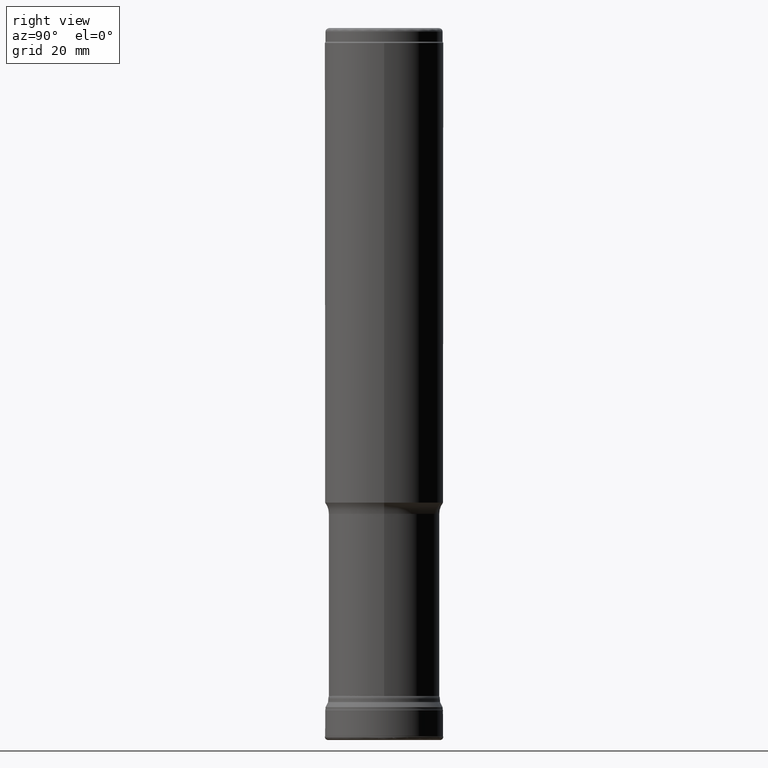
[diagram: clean part render]
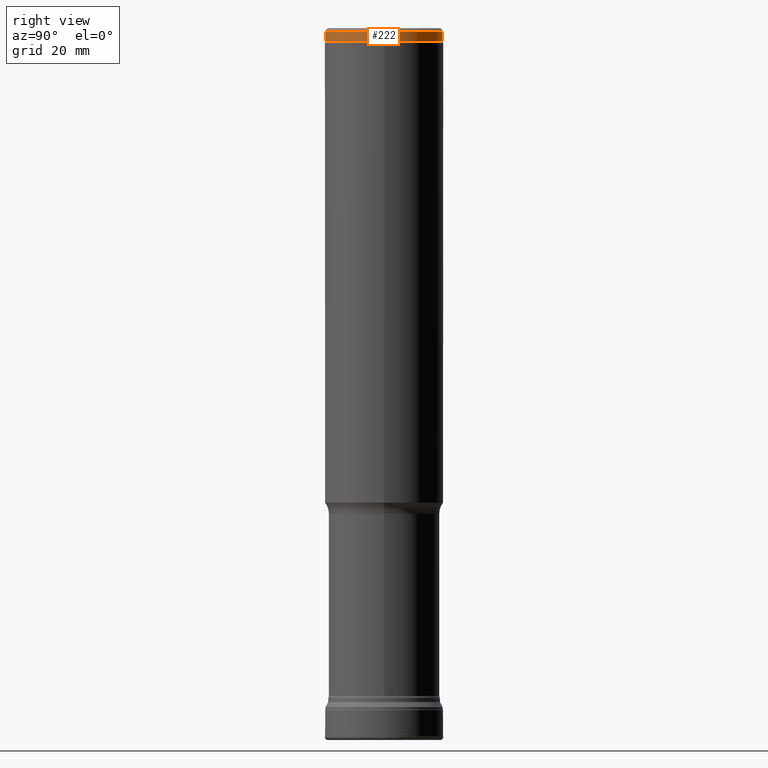
[diagram: same view with one face highlighted and labeled with its STEP entity id]
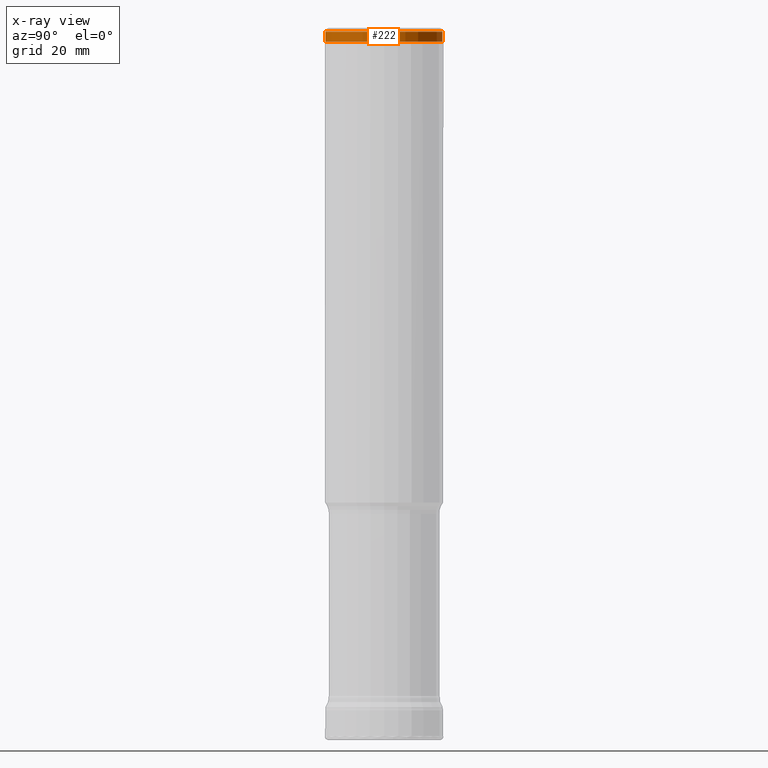
[diagram: x-ray of the same camera — body ghosted, the highlighted face saturated]
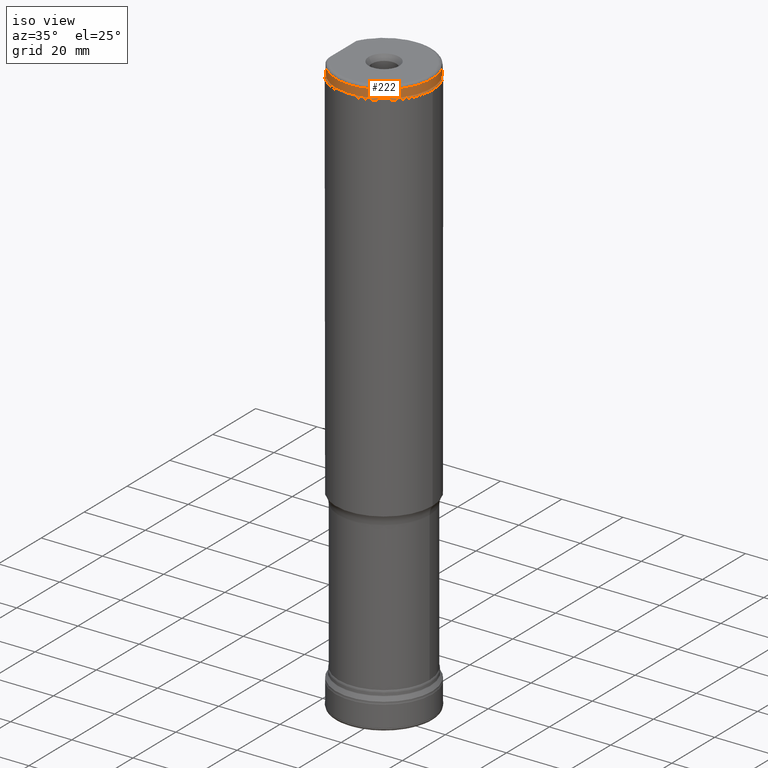
[diagram: same view with one face highlighted and labeled with its STEP entity id]
A machine part, right view. The second image highlights one B-rep face of the part: STEP entity #222.
The next image is the same camera in x-ray: the body ghosted, the highlighted face saturated — about 0% of this face is hidden behind the body in this view.
A second angle (iso view) of the same face is appended — the face is thin or edge-on in the first view.
In plain terms, the highlighted cylindrical surface (partial cylindrical patch) has radius 15.675 mm, axis along (-0, 0, -1).
Its self-contained STEP definition (entity closure, byte-faithful):
#209=FACE_OUTER_BOUND('',#426,.T.);
#222=ADVANCED_FACE('',(#209),#285,.T.);
#285=CYLINDRICAL_SURFACE('',#996,15.675);
#295=LINE('',#1701,#308);
#296=LINE('',#1705,#309);
#308=VECTOR('',#1079,1.);
#309=VECTOR('',#1082,1.);
#426=EDGE_LOOP('',(#552,#553,#554,#555));
#552=ORIENTED_EDGE('',*,*,#783,.T.);
#553=ORIENTED_EDGE('',*,*,#784,.T.);
#554=ORIENTED_EDGE('',*,*,#785,.T.);
#555=ORIENTED_EDGE('',*,*,#786,.T.);
#712=VERTEX_POINT('',#1699);
#713=VERTEX_POINT('',#1700);
#714=VERTEX_POINT('',#1702);
#715=VERTEX_POINT('',#1704);
#783=EDGE_CURVE('',#712,#713,#850,.T.);
#784=EDGE_CURVE('',#713,#714,#295,.T.);
#785=EDGE_CURVE('',#714,#715,#851,.T.);
#786=EDGE_CURVE('',#715,#712,#296,.T.);
#850=CIRCLE('',#994,15.675);
#851=CIRCLE('',#995,15.675);
#994=AXIS2_PLACEMENT_3D('',#1698,#1077,#1078);
#995=AXIS2_PLACEMENT_3D('',#1703,#1080,#1081);
#996=AXIS2_PLACEMENT_3D('',#1706,#1083,#1084);
#1077=DIRECTION('',(1.17145536458252E-15,0.,1.));
#1078=DIRECTION('',(-1.,0.,1.77069062938621E-15));
#1079=DIRECTION('',(1.17145536458252E-15,0.,1.));
#1080=DIRECTION('',(-1.17145536458252E-15,0.,-1.));
#1081=DIRECTION('',(-1.,0.,1.77069062938621E-15));
#1082=DIRECTION('',(-1.17145536458252E-15,0.,-1.));
#1083=DIRECTION('',(-1.17145536458252E-15,0.,-1.));
#1084=DIRECTION('',(-1.,0.,1.17145536458252E-15));
#1698=CARTESIAN_POINT('',(2.18882229536692E-13,0.,186.846410161514));
#1699=CARTESIAN_POINT('',(-13.4873999999998,-7.98721893026596,186.846410161514));
#1700=CARTESIAN_POINT('',(-13.4873999999998,7.98721893026596,186.846410161514));
#1701=CARTESIAN_POINT('',(-13.4874,7.98721893026596,1.94844397472451E-14));
#1702=CARTESIAN_POINT('',(-13.4873999999998,7.98721893026605,189.5));
#1703=CARTESIAN_POINT('',(2.21990791588388E-13,0.,189.5));
#1704=CARTESIAN_POINT('',(-13.4873999999998,-7.98721893026605,189.5));
#1705=CARTESIAN_POINT('',(-13.4874,-7.98721893026596,1.94844397472451E-14));
#1706=CARTESIAN_POINT('',(0.,0.,0.));